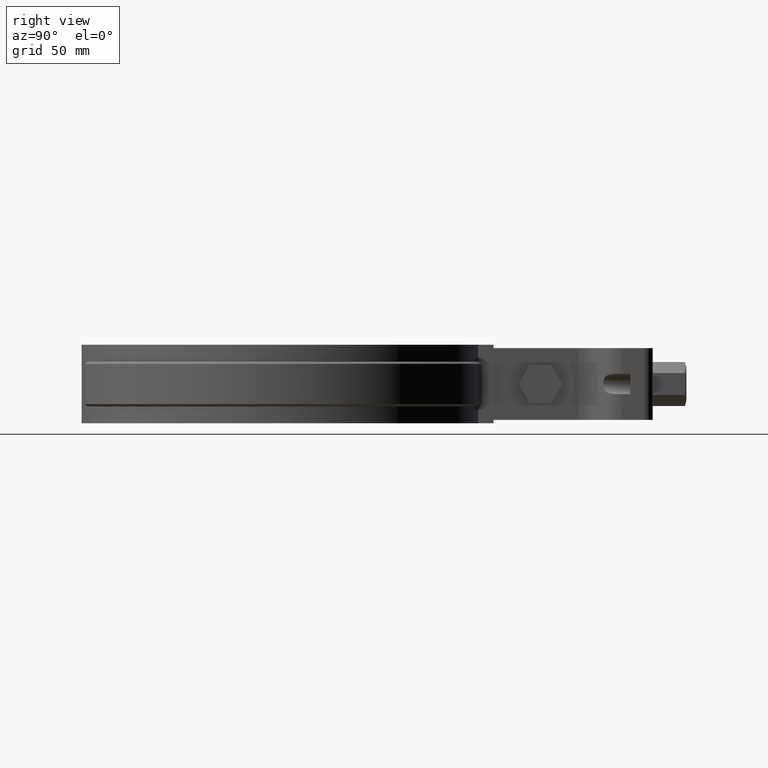
[diagram: clean part render]
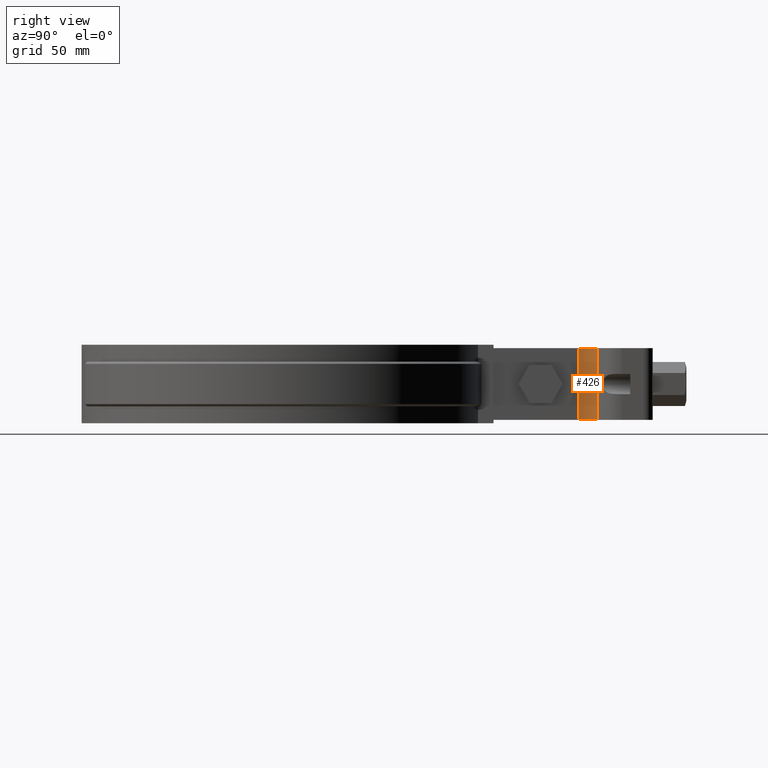
[diagram: same view with one face highlighted and labeled with its STEP entity id]
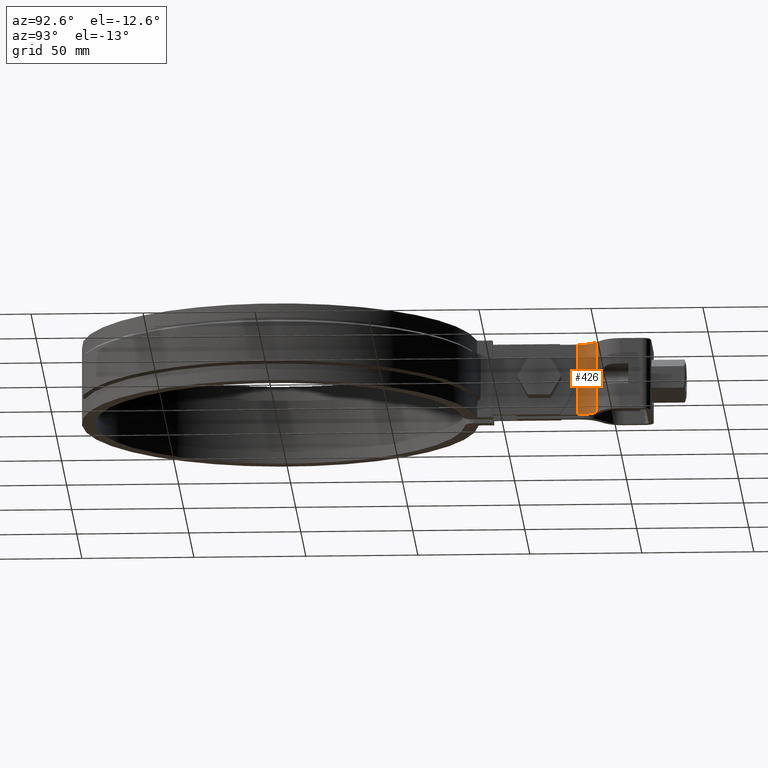
[diagram: same view with one face highlighted and labeled with its STEP entity id]
A machine part, right view. The second image highlights one B-rep face of the part: STEP entity #426.
A second angle (auxiliary view) of the same face is appended — the face is thin or edge-on in the first view.
In plain terms, the highlighted cylindrical surface (edge-blend (fillet) strip) has radius 10 mm, axis along (0, -0, -1).
Its self-contained STEP definition (entity closure, byte-faithful):
#426 = ADVANCED_FACE( '', ( #726 ), #727, .F. );
#726 = FACE_OUTER_BOUND( '', #1861, .T. );
#727 = CYLINDRICAL_SURFACE( '', #1862, 9.99999999999885 );
#1861 = EDGE_LOOP( '', ( #4489, #4490, #4491, #4492 ) );
#1862 = AXIS2_PLACEMENT_3D( '', #4493, #4494, #4495 );
#4489 = ORIENTED_EDGE( '', *, *, #5284, .F. );
#4490 = ORIENTED_EDGE( '', *, *, #5313, .F. );
#4491 = ORIENTED_EDGE( '', *, *, #5300, .T. );
#4492 = ORIENTED_EDGE( '', *, *, #5318, .T. );
#4493 = CARTESIAN_POINT( '', ( 14.9999999999999, 133.144722265554, -31.9999999999922 ) );
#4494 = DIRECTION( '', ( 9.11521279052786E-016, -1.75137682134619E-013, -1.00000000000000 ) );
#4495 = DIRECTION( '', ( -3.03451482752472E-016, 1.00000000000000, -1.75137682134619E-013 ) );
#5284 = EDGE_CURVE( '', #5970, #5972, #5973, .T. );
#5300 = EDGE_CURVE( '', #6001, #5999, #6002, .T. );
#5313 = EDGE_CURVE( '', #6001, #5970, #6021, .T. );
#5318 = EDGE_CURVE( '', #5999, #5972, #6027, .T. );
#5970 = VERTEX_POINT( '', #9071 );
#5972 = VERTEX_POINT( '', #9074 );
#5973 = CIRCLE( '', #9075, 9.99999999999998 );
#5999 = VERTEX_POINT( '', #9110 );
#6001 = VERTEX_POINT( '', #9113 );
#6002 = CIRCLE( '', #9114, 9.99999999999998 );
#6021 = LINE( '', #9141, #9142 );
#6027 = LINE( '', #9148, #9149 );
#9071 = CARTESIAN_POINT( '', ( 4.99999999999992, 133.144722265560, 4.17027523624792E-012 ) );
#9074 = CARTESIAN_POINT( '', ( 9.26423563648945, 141.336242708449, 2.73739364509119E-012 ) );
#9075 = AXIS2_PLACEMENT_3D( '', #9938, #9939, #9940 );
#9110 = CARTESIAN_POINT( '', ( 9.26423563648948, 141.336242708443, -31.9999999999936 ) );
#9113 = CARTESIAN_POINT( '', ( 4.99999999999995, 133.144722265554, -31.9999999999922 ) );
#9114 = AXIS2_PLACEMENT_3D( '', #9966, #9967, #9968 );
#9141 = CARTESIAN_POINT( '', ( 4.99999999999995, 133.144722265554, -31.9999999999922 ) );
#9142 = VECTOR( '', #9989, 999.999999999964 );
#9148 = CARTESIAN_POINT( '', ( 9.26423563648948, 141.336242708443, -31.9999999999936 ) );
#9149 = VECTOR( '', #10002, 999.999999999964 );
#9938 = CARTESIAN_POINT( '', ( 14.9999999999999, 133.144722265560, 4.18068357710378E-012 ) );
#9939 = DIRECTION( '', ( 9.11521279052786E-016, -1.75137682134619E-013, -1.00000000000000 ) );
#9940 = DIRECTION( '', ( -1.00000000000000, -3.03451482752632E-016, -9.11521279052733E-016 ) );
#9966 = CARTESIAN_POINT( '', ( 14.9999999999999, 133.144722265554, -31.9999999999922 ) );
#9967 = DIRECTION( '', ( 9.11521279052786E-016, -1.75137682134619E-013, -1.00000000000000 ) );
#9968 = DIRECTION( '', ( -1.00000000000000, -3.03451482752632E-016, -9.11521279052733E-016 ) );
#9989 = DIRECTION( '', ( -9.11521279052786E-016, 1.75137682134619E-013, 1.00000000000000 ) );
#10002 = DIRECTION( '', ( -9.11521279052786E-016, 1.75137682134619E-013, 1.00000000000000 ) );